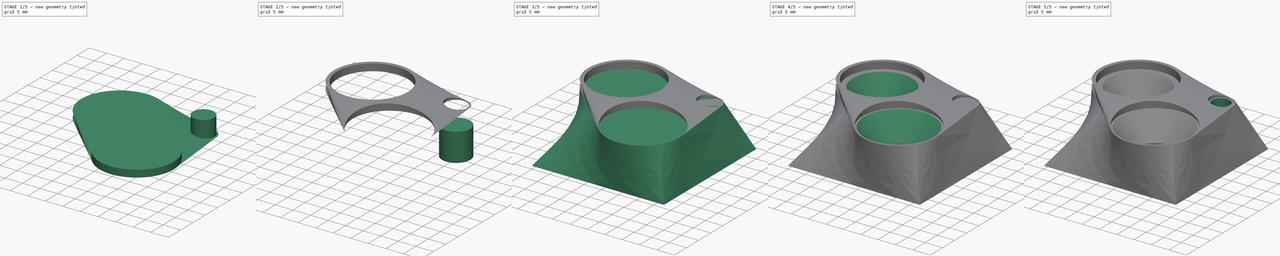
[diagram: build sequence overview — one tinted view per stage of 5, left to right]
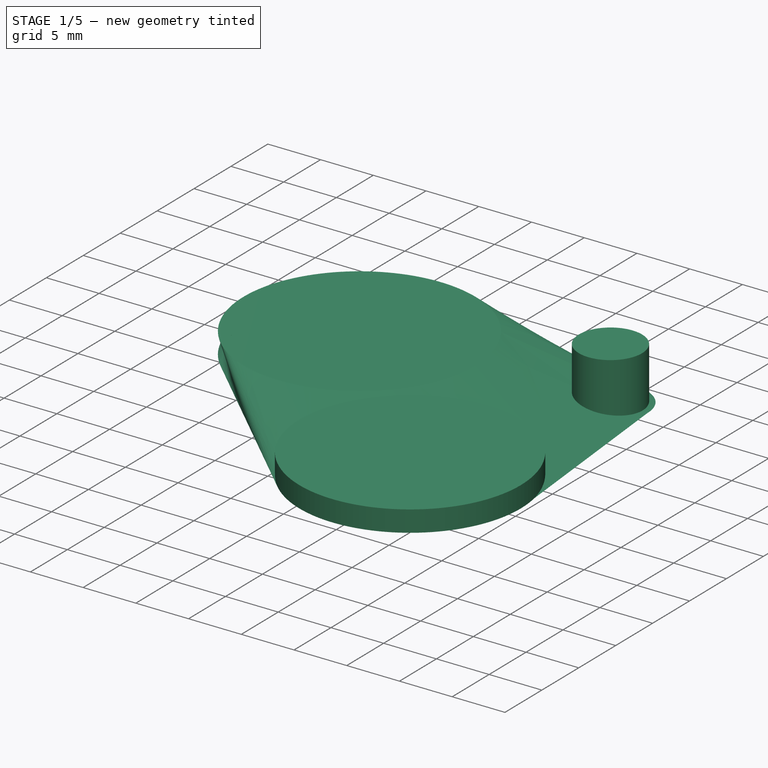
[diagram: stage 1 of 5 — iso view after this stage's code; geometry added in this stage tinted green]
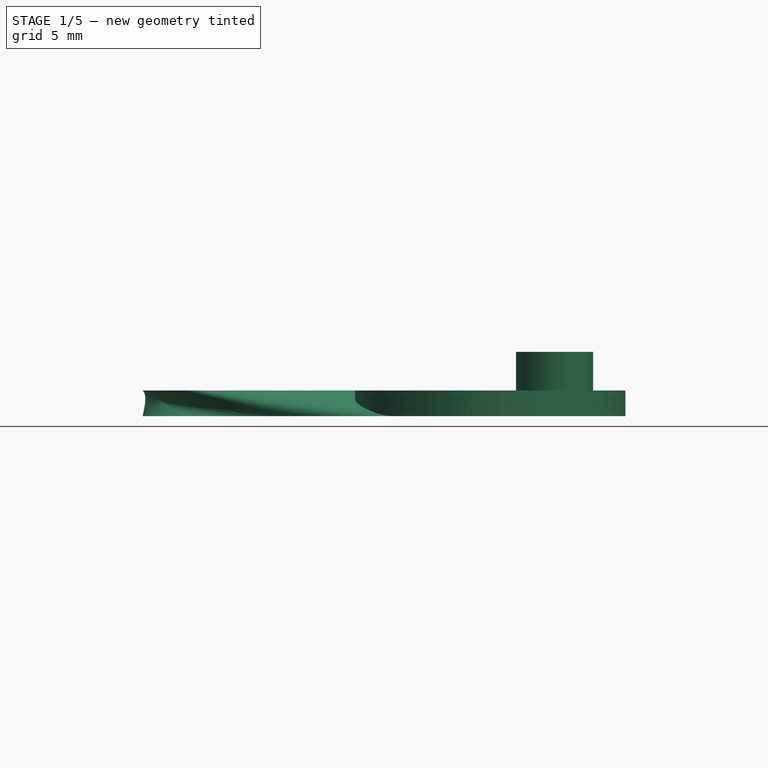
[diagram: stage 1 of 5 — front view after this stage's code; geometry added in this stage tinted green]
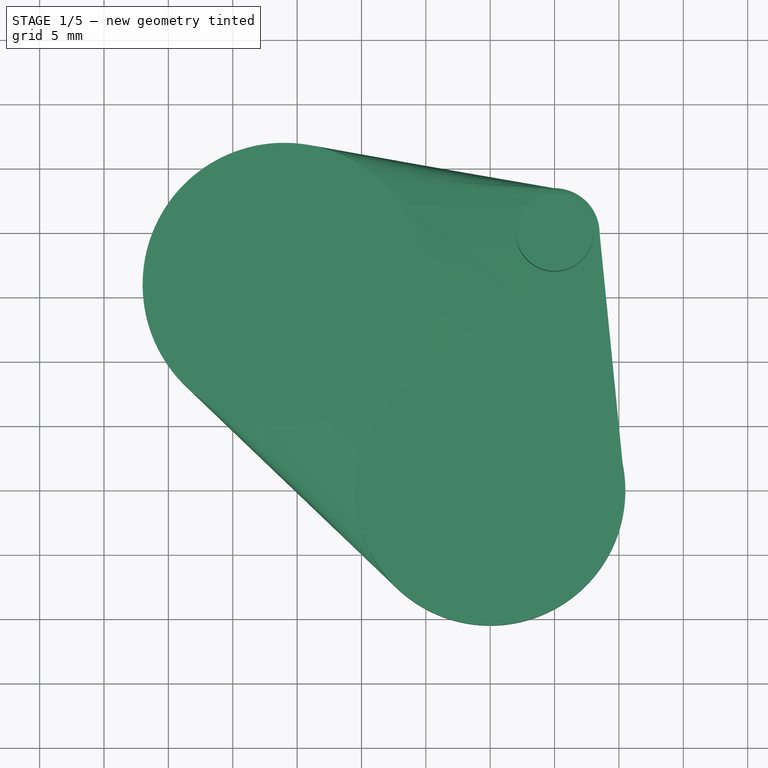
[diagram: stage 1 of 5 — top view after this stage's code; geometry added in this stage tinted green]
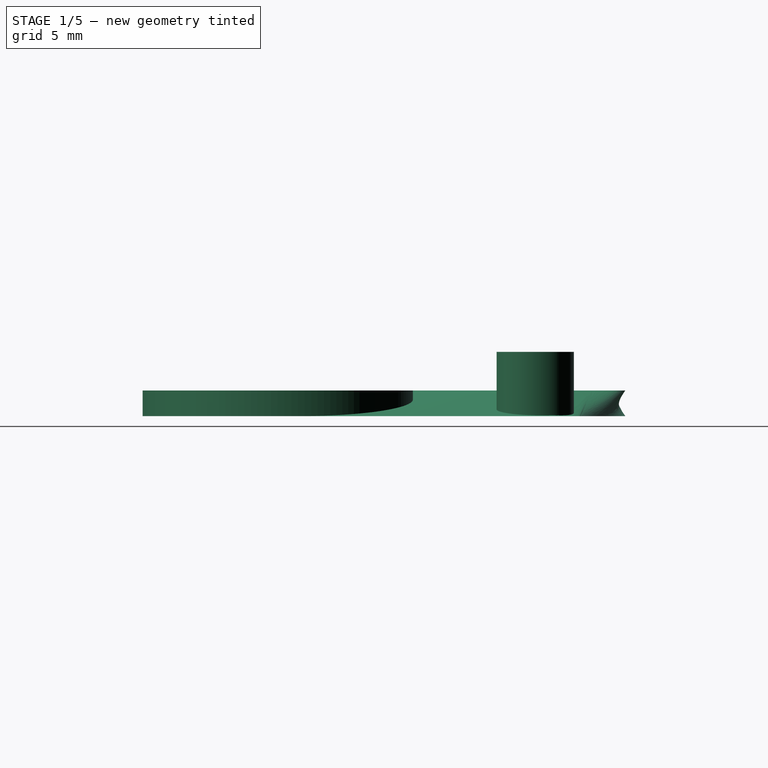
[diagram: stage 1 of 5 — right view after this stage's code; geometry added in this stage tinted green]
FCSTD DOCUMENT  (FreeCAD 0.15R4671 (Git))
Label: tapa_frontal
License: All rights reserved
LicenseURL: http://en.wikipedia.org/wiki/All_rights_reserved
objects: Sketcher::SketchObject×16, Part::Cut×8, PartDesign::Pad×5, Part::Loft×4, Part::Extrusion×1, Part::Fuse×1
note: 40 computed .brp shape members not serialized (recipe doc carries the construction recipe); baked Part::Feature solids carry a one-line shape summary decoded from their .brp

FEATURE [Part::Loft] Loft003
  Closed = false
  Ruled = false
  Sections = -> [Sketch003,Sketch008]
  Solid = true
FEATURE [Sketcher::SketchObject] Sketch014  label="base-superior-LED-cono-superior001"
  Placement = pos=(0,0,15) rot=(0,0,1;0rad)
  sketch-geometry (1):
    g0: Circle CenterX=9 CenterY=26 CenterZ=0 NormalX=0 NormalY=0 NormalZ=1 Radius=10
  constraints (3):
    c: DistanceY(g-1,g0) = 26
    c: DistanceX(g-2,g0) = 9
    c: Radius(g0) = 10
FEATURE [PartDesign::Pad] Pad
  Length = 2
  Length2 = 100
  Placement = pos=(0,0,15) rot=(0,0,1;0rad)
  Reversed = true
  Sketch = -> Sketch014
  Type = 0
FEATURE [Sketcher::SketchObject] Sketch015
  Placement = pos=(0,0,13) rot=(0,0,1;0rad)
  sketch-geometry (1):
    g0: Circle CenterX=25 CenterY=10 CenterZ=0 NormalX=0 NormalY=0 NormalZ=1 Radius=10.5
  constraints (3):
    c: DistanceX(g-1,g0) = 25
    c: DistanceY(g-1,g0) = 10
    c: Radius(g0) = 10.5
FEATURE [PartDesign::Pad] Pad001
  Length = 2
  Length2 = 100
  Placement = pos=(0,0,13) rot=(0,0,1;0rad)
  Sketch = -> Sketch015
  Type = 0
FEATURE [Sketcher::SketchObject] Sketch018
  Placement = pos=(0,0,13) rot=(0,0,1;0rad)
  sketch-geometry (1):
    g0: Circle CenterX=30 CenterY=30 CenterZ=0 NormalX=0 NormalY=0 NormalZ=1 Radius=3
  constraints (3):
    c: DistanceX(g-1,g0) = 30
    c: DistanceY(g-1,g0) = 30
    c: Radius(g0) = 3
FEATURE [PartDesign::Pad] Pad004
  Length = 5
  Length2 = 100
  Placement = pos=(0,0,13) rot=(0,0,1;0rad)
  Sketch = -> Sketch018
  Type = 0
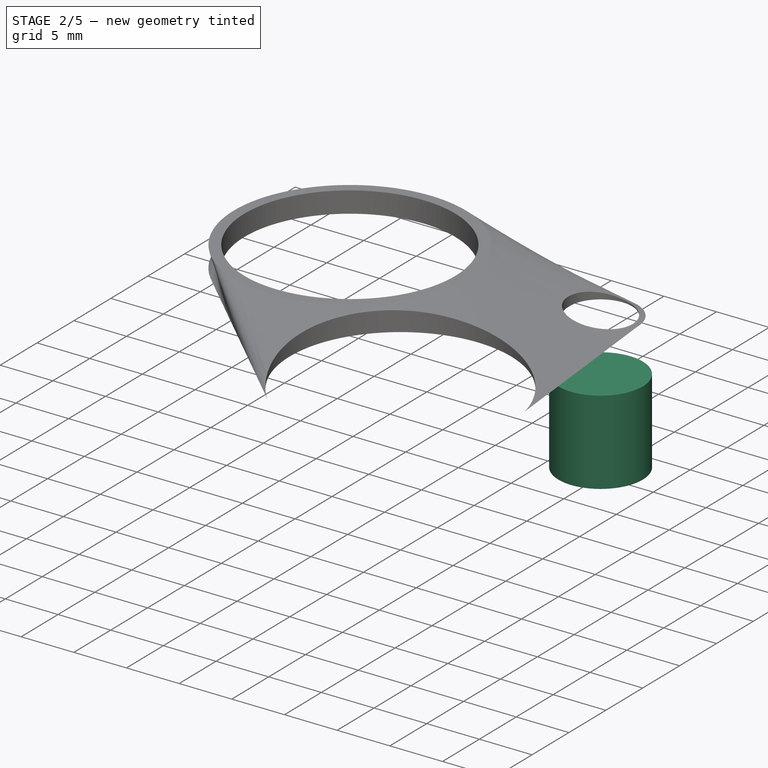
[diagram: stage 2 of 5 — iso view after this stage's code; geometry added in this stage tinted green]
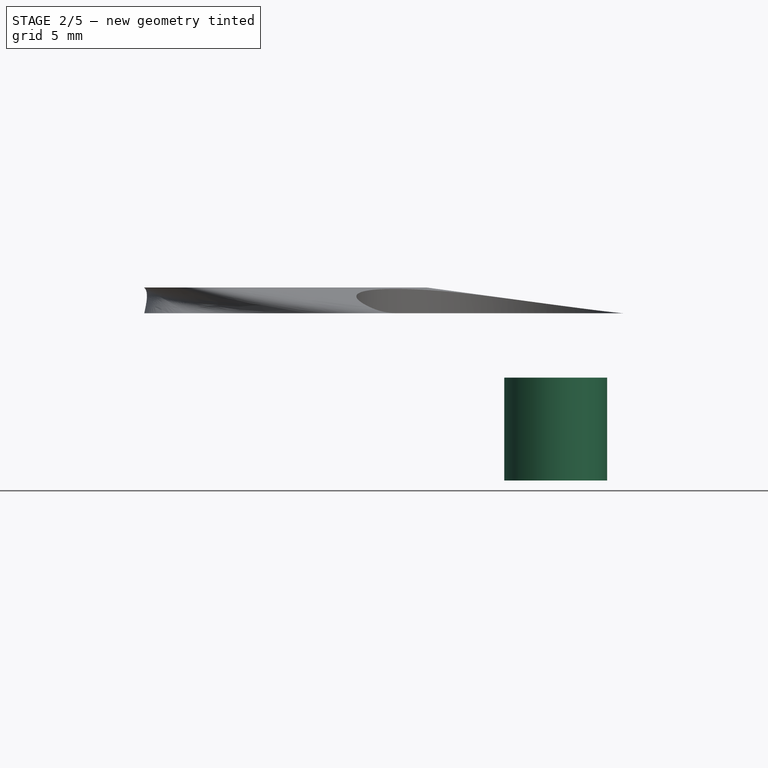
[diagram: stage 2 of 5 — front view after this stage's code; geometry added in this stage tinted green]
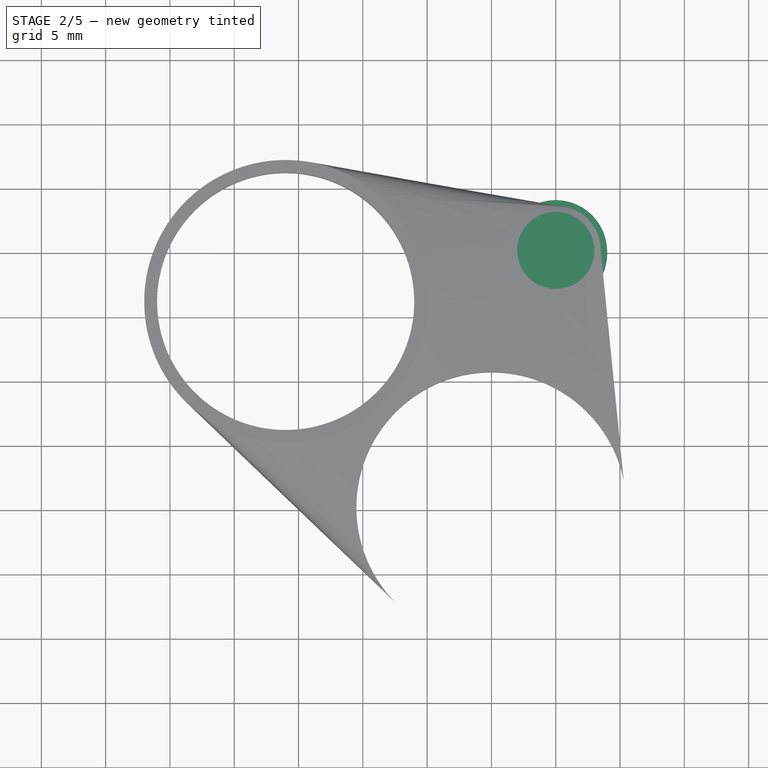
[diagram: stage 2 of 5 — top view after this stage's code; geometry added in this stage tinted green]
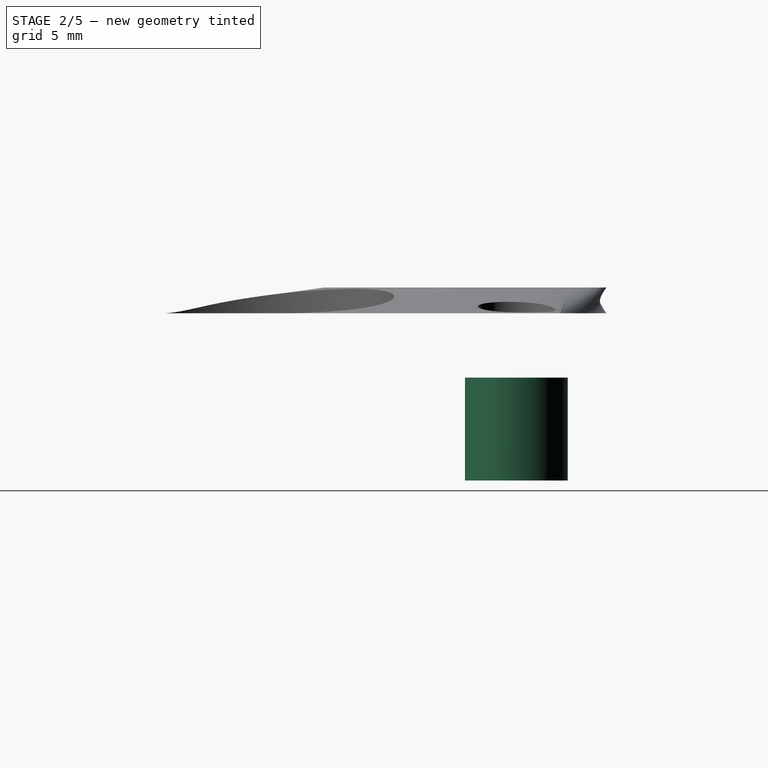
[diagram: stage 2 of 5 — right view after this stage's code; geometry added in this stage tinted green]
FEATURE [Part::Cut] Cut002  label="tapa"
  Base = -> Loft003
  Tool = -> Pad
FEATURE [Part::Cut] Cut004  label="tapa001"
  Base = -> Cut002
  Tool = -> Pad001
FEATURE [Sketcher::SketchObject] Sketch017  label="base-superior-SENSOR"
  sketch-geometry (1):
    g0: Circle CenterX=30 CenterY=30 CenterZ=0 NormalX=0 NormalY=0 NormalZ=1 Radius=2.5
  constraints (3):
    c: DistanceY(g-1,g0) = 30
    c: DistanceX(g-1,g0) = 30
    c: Radius(g0) = 2.5
FEATURE [PartDesign::Pad] Pad002
  Length = 8
  Length2 = 100
  Sketch = -> Sketch001
  Type = 0
FEATURE [Part::Cut] Cut007
  Base = -> Cut004
  Tool = -> Pad004
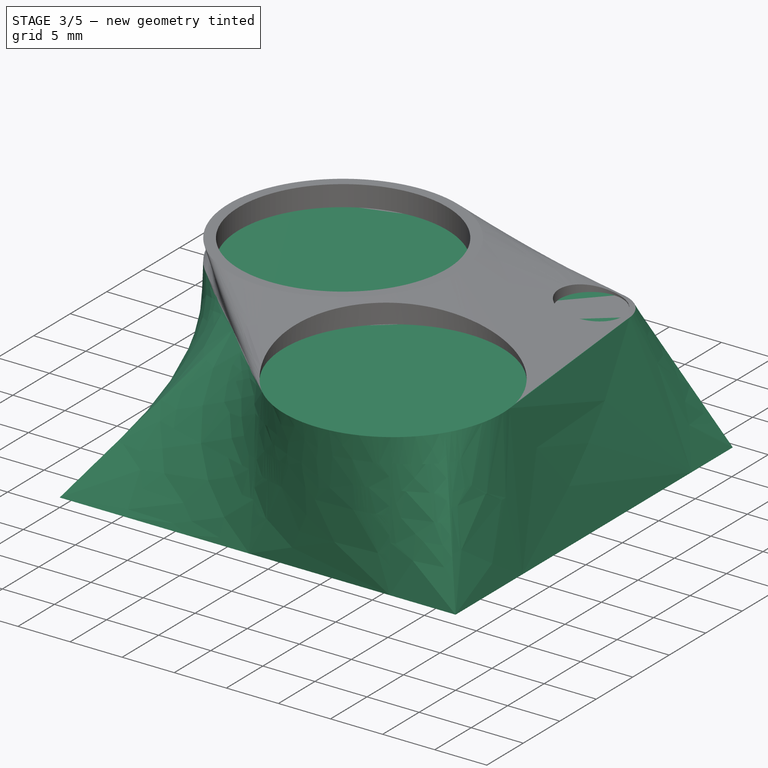
[diagram: stage 3 of 5 — iso view after this stage's code; geometry added in this stage tinted green]
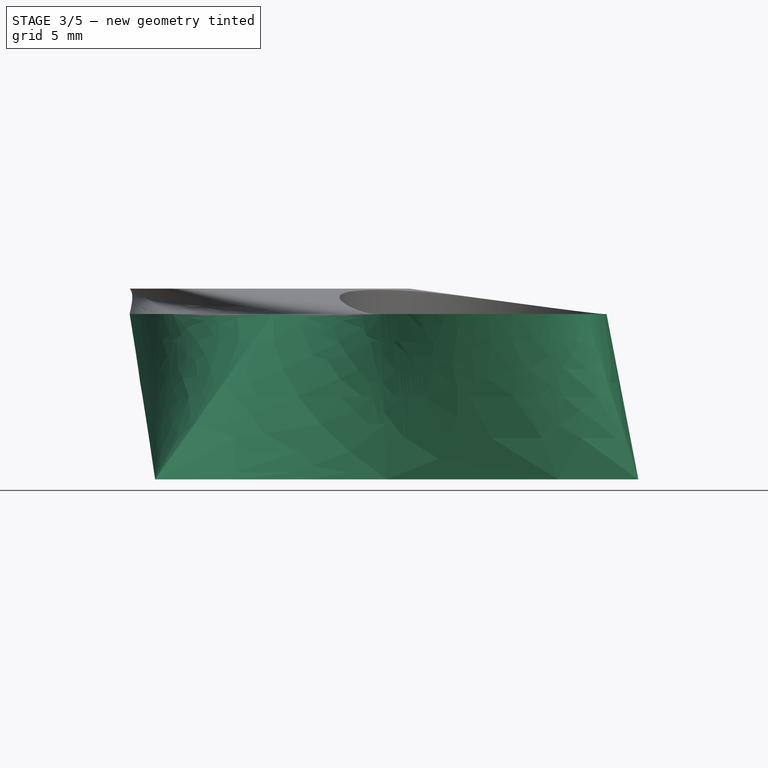
[diagram: stage 3 of 5 — front view after this stage's code; geometry added in this stage tinted green]
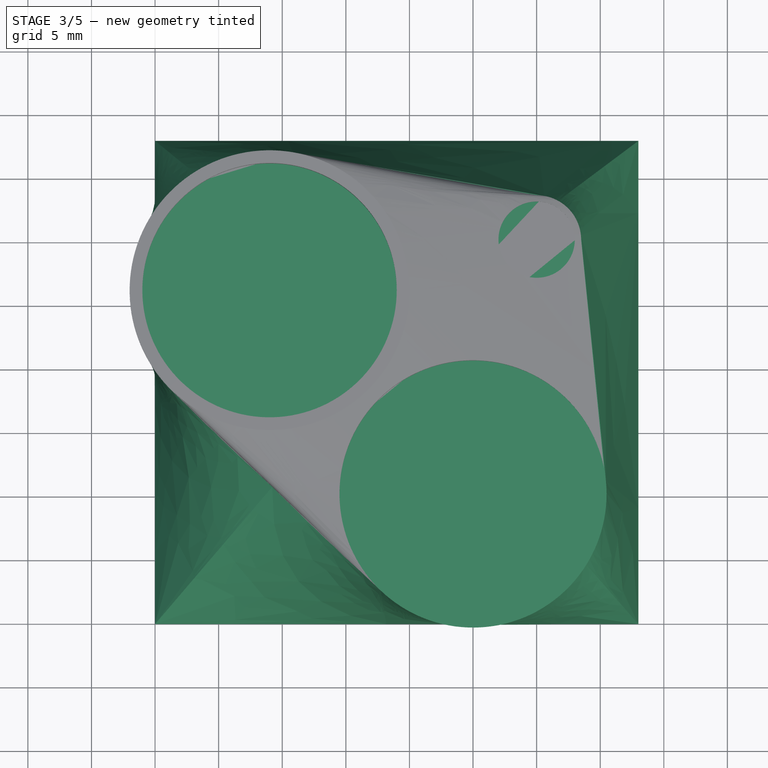
[diagram: stage 3 of 5 — top view after this stage's code; geometry added in this stage tinted green]
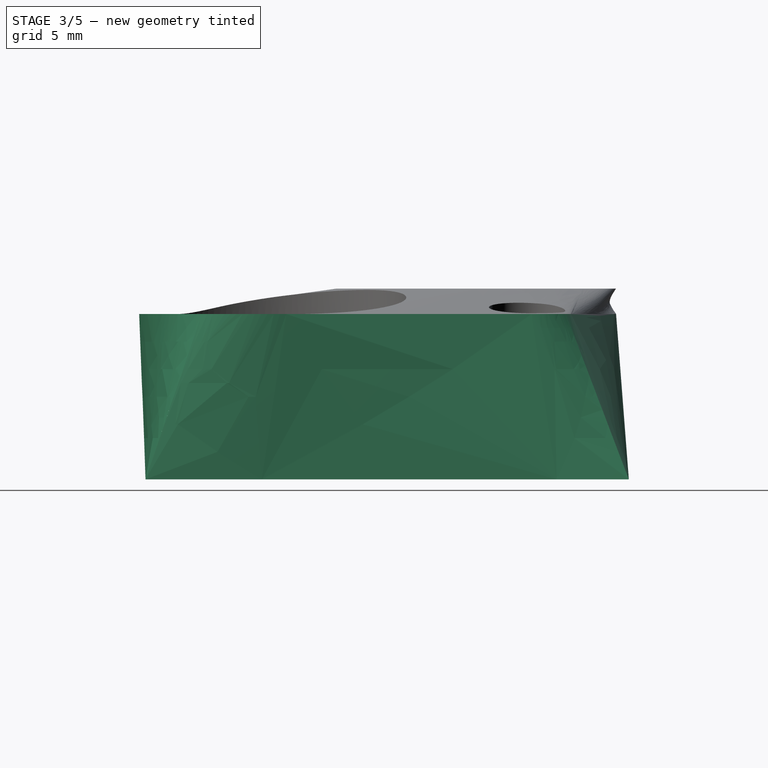
[diagram: stage 3 of 5 — right view after this stage's code; geometry added in this stage tinted green]
FEATURE [Sketcher::SketchObject] Sketch  label="base-inferior"
  sketch-geometry (5):
    g0: LineSegment StartX=0 StartY=38 StartZ=0 EndX=38 EndY=38 EndZ=0
    g1: LineSegment StartX=38 StartY=38 StartZ=0 EndX=38 EndY=0 EndZ=0
    g2: LineSegment StartX=0 StartY=0 StartZ=0 EndX=0 EndY=38 EndZ=0
    g3: LineSegment StartX=0 StartY=0 StartZ=0 EndX=31.6799 EndY=0 EndZ=0
    g4: LineSegment StartX=31.6799 StartY=0 StartZ=0 EndX=38 EndY=0 EndZ=0
  constraints (14):
    c: Coincident(g0,g1)
    c: Coincident(g2,g0)
    c: Horizontal(g0)
    c: Vertical(g1)
    c: DistanceX(g0) = 38
    c: Coincident(g1,g4)
    c: Horizontal(g3)
    c: Horizontal(g4)
    c: Vertical(g2)
    c: DistanceY(g1) = -38
    c: DistanceX(g4) = 6.32011
    c: Coincident(g3,g4)
    c: Coincident(g2,g-1)
    c: Coincident(g2,g3)
FEATURE [Sketcher::SketchObject] Sketch001  label="base-inferior-SENSOR"
  sketch-geometry (1):
    g0: Circle CenterX=30 CenterY=30 CenterZ=0 NormalX=0 NormalY=0 NormalZ=1 Radius=4
  constraints (3):
    c: DistanceX(g-2,g0) = 30
    c: DistanceY(g-1,g0) = 30
    c: Radius(g0) = 4
FEATURE [Sketcher::SketchObject] Sketch002  label="base-superior"
  Placement = pos=(0,0,13) rot=(0,0,1;0rad)
  sketch-geometry (6):
    g0: ArcOfCircle CenterX=9 CenterY=26 CenterZ=0 NormalX=0 NormalY=0 NormalZ=1 Radius=11 StartAngle=1.40055 EndAngle=3.94909
    g1: ArcOfCircle CenterX=30 CenterY=30 CenterZ=0 NormalX=0 NormalY=0 NormalZ=1 Radius=3.5 StartAngle=0.10146 EndAngle=1.40055
    g2: ArcOfCircle CenterX=25 CenterY=10 CenterZ=0 NormalX=0 NormalY=0 NormalZ=1 Radius=10.5 StartAngle=3.94909 EndAngle=6.38464
    g3: LineSegment StartX=10.8636 StartY=36.841 StartZ=0 EndX=30.593 EndY=33.4494 EndZ=0
    g4: LineSegment StartX=33.482 StartY=30.3545 StartZ=0 EndX=35.446 EndY=11.0635 EndZ=0
    g5: LineSegment StartX=1.3956 StartY=18.0518 StartZ=0 EndX=17.7413 EndY=2.41313 EndZ=0
  constraints (15):
    c: Radius(g0) = 11
    c: Radius(g1) = 3.5
    c: Radius(g2) = 10.5
    c: DistanceX(g-2,g2) = 25
    c: DistanceY(g-1,g2) = 10
    c: DistanceY(g-1,g1) = 30
    c: DistanceX(g-2,g1) = 30
    c: DistanceX(g-2,g0) = 9
    c: DistanceY(g-1,g0) = 26
    c: Coincident(g0,g3)
    c: Coincident(g0,g5)
    c: Coincident(g2,g5)
    c: Coincident(g2,g4)
    c: Coincident(g1,g4)
    c: Coincident(g1,g3)
FEATURE [Sketcher::SketchObject] Sketch003  label="base-superior-borde"
  Placement = pos=(0,0,13) rot=(0,0,1;0rad)
  sketch-geometry (6):
    g0: ArcOfCircle CenterX=9 CenterY=26 CenterZ=0 NormalX=0 NormalY=0 NormalZ=1 Radius=11 StartAngle=1.47155 EndAngle=3.94909
    g1: ArcOfCircle CenterX=30 CenterY=30 CenterZ=0 NormalX=0 NormalY=0 NormalZ=1 Radius=3.5 StartAngle=0 EndAngle=1.5708
    g2: ArcOfCircle CenterX=25 CenterY=10 CenterZ=0 NormalX=0 NormalY=0 NormalZ=1 Radius=10.5 StartAngle=3.94909 EndAngle=6.28319
    g3: LineSegment StartX=10.0899 StartY=36.9459 StartZ=0 EndX=30 EndY=33.5 EndZ=0
    g4: LineSegment StartX=33.5 StartY=30 StartZ=0 EndX=35.5 EndY=10 EndZ=0
    g5: LineSegment StartX=1.3956 StartY=18.0518 StartZ=0 EndX=17.7413 EndY=2.41313 EndZ=0
  constraints (21):
    c: Radius(g0) = 11
    c: Radius(g1) = 3.5
    c: Radius(g2) = 10.5
    c: DistanceX(g-2,g2) = 25
    c: DistanceY(g-1,g2) = 10
    c: DistanceY(g-1,g1) = 30
    c: DistanceX(g-2,g1) = 30
    c: DistanceX(g-2,g0) = 9
    c: DistanceY(g-1,g0) = 26
    c: Coincident(g0,g3)
    c: Coincident(g0,g5)
    c: Coincident(g2,g5)
    c: Coincident(g2,g4)
    c: Coincident(g1,g4)
    c: Coincident(g1,g3)
    c: DistanceX(g-2,g0) = 10.0899
    c: DistanceX(g-2,g1) = 30
    c: DistanceY(g-1,g1) = 30
    c: DistanceY(g-1,g2) = 10
    c: DistanceY(g-1,g2) = 2.41313
    c: DistanceX(g-2,g0) = 1.3956
FEATURE [Sketcher::SketchObject] Sketch005  label="base-inferior001"
  sketch-geometry (4):
    g0: LineSegment StartX=0 StartY=38 StartZ=0 EndX=38 EndY=38 EndZ=0
    g1: LineSegment StartX=38 StartY=38 StartZ=0 EndX=38 EndY=0 EndZ=0
    g2: LineSegment StartX=38 StartY=0 StartZ=0 EndX=0 EndY=0 EndZ=0
    g3: LineSegment StartX=0 StartY=0 StartZ=0 EndX=0 EndY=38 EndZ=0
  constraints (11):
    c: Coincident(g0,g1)
    c: Coincident(g1,g2)
    c: Coincident(g2,g3)
    c: Coincident(g3,g0)
    c: Horizontal(g0)
    c: Horizontal(g2)
    c: Vertical(g1)
    c: Vertical(g3)
    c: Coincident(g2,g-1)
    c: DistanceY(g3) = 38
    c: DistanceX(g0) = 38
FEATURE [Sketcher::SketchObject] Sketch006  label="base-superior001"
  Placement = pos=(0,0,13) rot=(0,0,1;0rad)
  sketch-geometry (6):
    g0: ArcOfCircle CenterX=9 CenterY=26 CenterZ=0 NormalX=0 NormalY=0 NormalZ=1 Radius=11 StartAngle=1.40055 EndAngle=3.94909
    g1: ArcOfCircle CenterX=30 CenterY=30 CenterZ=0 NormalX=0 NormalY=0 NormalZ=1 Radius=3.5 StartAngle=0.10146 EndAngle=1.40055
    g2: ArcOfCircle CenterX=25 CenterY=10 CenterZ=0 NormalX=0 NormalY=0 NormalZ=1 Radius=10.5 StartAngle=3.94909 EndAngle=6.38464
    g3: LineSegment StartX=10.8636 StartY=36.841 StartZ=0 EndX=30.593 EndY=33.4494 EndZ=0
    g4: LineSegment StartX=33.482 StartY=30.3545 StartZ=0 EndX=35.446 EndY=11.0635 EndZ=0
    g5: LineSegment StartX=1.3956 StartY=18.0518 StartZ=0 EndX=17.7413 EndY=2.41313 EndZ=0
  constraints (15):
    c: Radius(g0) = 11
    c: Radius(g1) = 3.5
    c: Radius(g2) = 10.5
    c: DistanceX(g-2,g2) = 25
    c: DistanceY(g-1,g2) = 10
    c: DistanceY(g-1,g1) = 30
    c: DistanceX(g-2,g1) = 30
    c: DistanceX(g-2,g0) = 9
    c: DistanceY(g-1,g0) = 26
    c: Coincident(g0,g3)
    c: Coincident(g0,g5)
    c: Coincident(g2,g5)
    c: Coincident(g2,g4)
    c: Coincident(g1,g4)
    c: Coincident(g1,g3)
FEATURE [Sketcher::SketchObject] Sketch007  label="recortes-entrada-LED"
  sketch-geometry (4):
    g0: ArcOfCircle CenterX=9 CenterY=26 CenterZ=0 NormalX=0 NormalY=0 NormalZ=1 Radius=11 StartAngle=4.02261 EndAngle=8.54376
    g1: ArcOfCircle CenterX=25 CenterY=10 CenterZ=0 NormalX=0 NormalY=0 NormalZ=1 Radius=11 StartAngle=5.46885 EndAngle=10.2391
    g2: LineSegment StartX=2 StartY=34.4853 StartZ=0 EndX=2 EndY=17.5147 EndZ=0
    g3: LineSegment StartX=17.4502 StartY=2 StartZ=0 EndX=32.5498 EndY=2 EndZ=0
  constraints (14):
    c: DistanceX(g-1,g0) = 9
    c: DistanceY(g-1,g0) = 26
    c: Radius(g0) = 11
    c: DistanceY(g-1,g1) = 10
    c: DistanceX(g-1,g1) = 25
    c: Radius(g1) = 11
    c: Vertical(g2)
    c: Coincident(g0,g2)
    c: Coincident(g0,g2)
    c: DistanceX(g-1,g0) = 2
    c: Horizontal(g3)
    c: Coincident(g1,g3)
    c: Coincident(g1,g3)
    c: DistanceY(g-1,g1) = 2
FEATURE [Sketcher::SketchObject] Sketch008  label="base-superior-LED-2"
  Placement = pos=(0,0,15) rot=(0,0,1;0rad)
  sketch-geometry (1):
    g0: Circle CenterX=9 CenterY=26 CenterZ=0 NormalX=0 NormalY=0 NormalZ=1 Radius=11
  constraints (3):
    c: DistanceY(g-1,g0) = 26
    c: DistanceX(g-2,g0) = 9
    c: Radius(g0) = 11
FEATURE [Part::Extrusion] Extrude001  label="recortes-LED-base"
  Base = -> Sketch007
  Dir = (0,0,7)
  Solid = true
FEATURE [Sketcher::SketchObject] Sketch010  label="base-superior-LED-cono-superior"
  Placement = pos=(0,0,15) rot=(0,0,1;0rad)
  sketch-geometry (1):
    g0: Circle CenterX=9 CenterY=26 CenterZ=0 NormalX=0 NormalY=0 NormalZ=1 Radius=10
  constraints (3):
    c: DistanceY(g-1,g0) = 26
    c: DistanceX(g-2,g0) = 9
    c: Radius(g0) = 10
FEATURE [Part::Loft] Loft
  Closed = false
  Ruled = false
  Sections = -> [Sketch,Sketch002]
  Solid = true
FEATURE [Part::Cut] Cut
  Base = -> Loft
  Tool = -> Extrude001
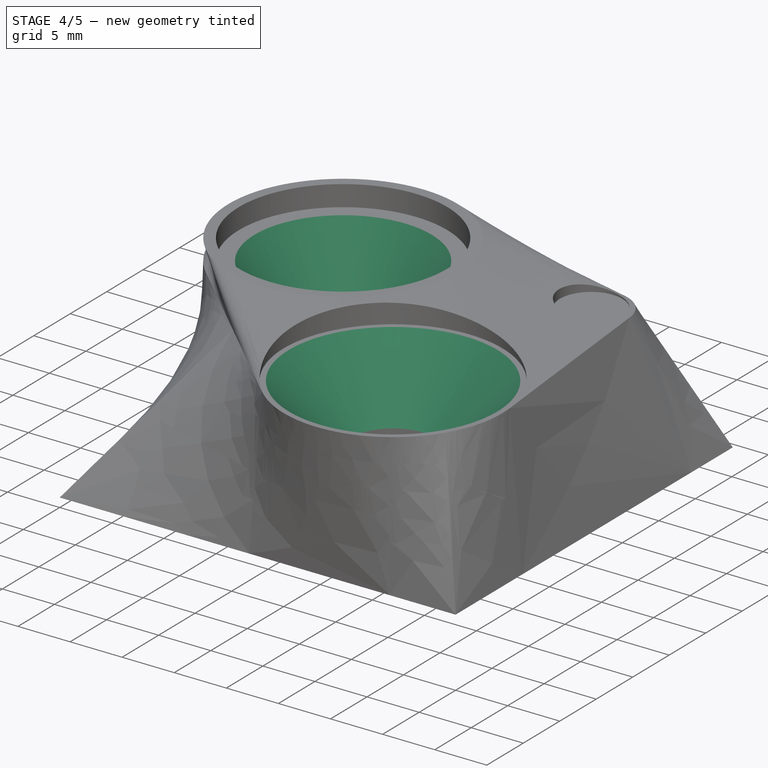
[diagram: stage 4 of 5 — iso view after this stage's code; geometry added in this stage tinted green]
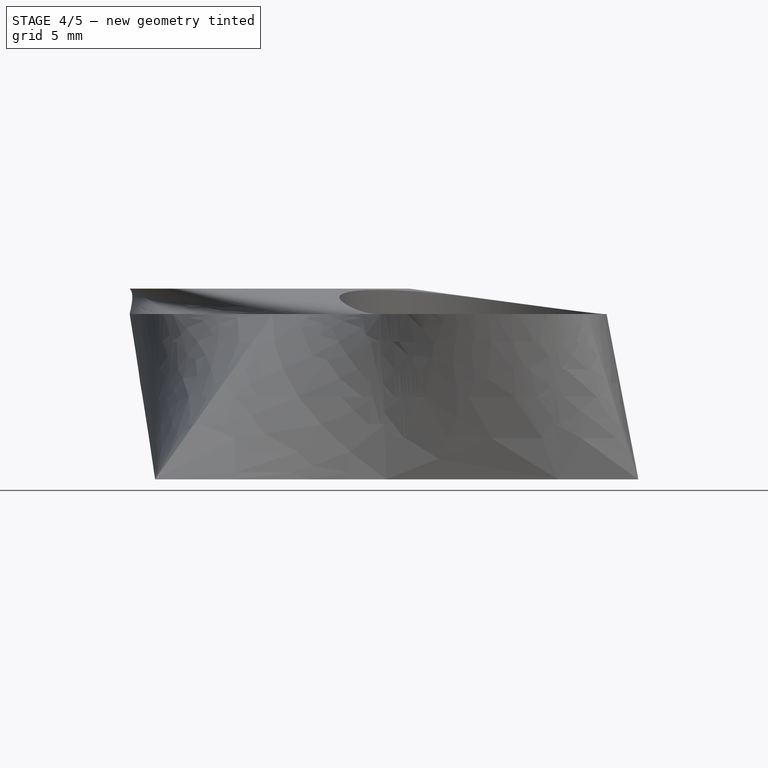
[diagram: stage 4 of 5 — front view after this stage's code; geometry added in this stage tinted green]
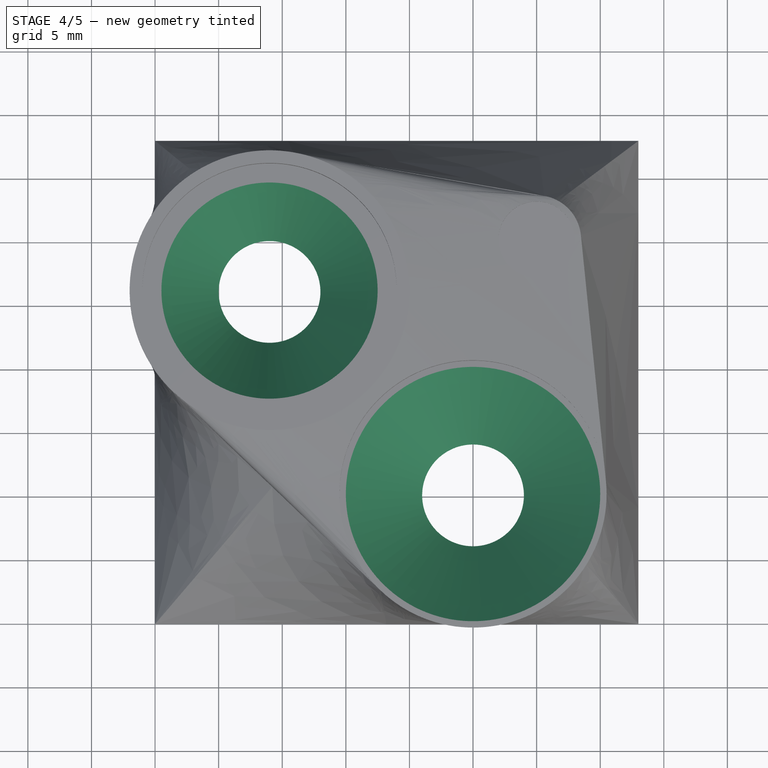
[diagram: stage 4 of 5 — top view after this stage's code; geometry added in this stage tinted green]
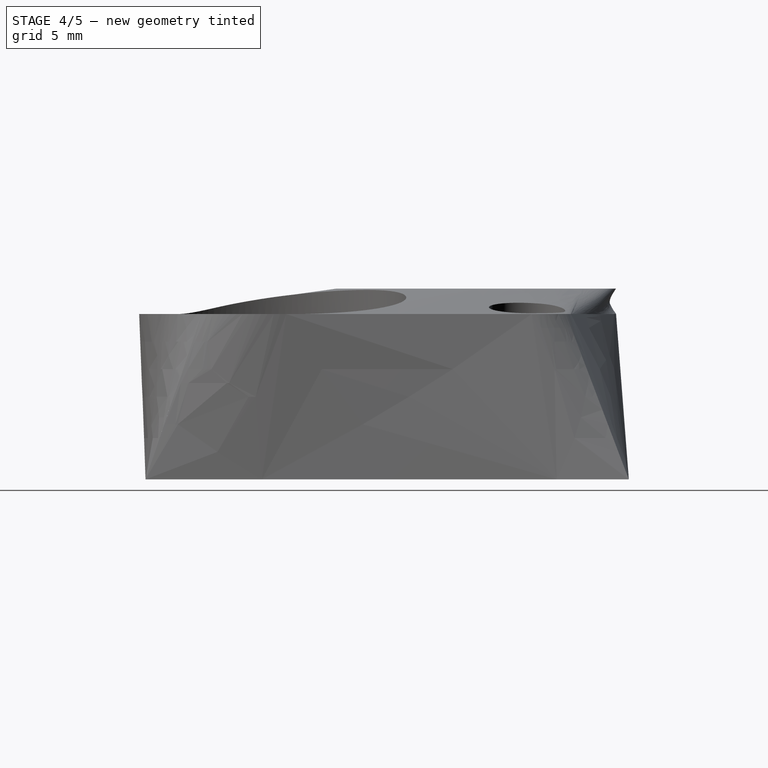
[diagram: stage 4 of 5 — right view after this stage's code; geometry added in this stage tinted green]
FEATURE [Sketcher::SketchObject] Sketch011  label="base-superior-LED-cono-inferior"
  Placement = pos=(0,0,7) rot=(0,0,1;0rad)
  Support = -> Extrude001 [Face8]
  sketch-geometry (1):
    g0: Circle CenterX=9 CenterY=26 CenterZ=0 NormalX=0 NormalY=0 NormalZ=1 Radius=4
  constraints (3):
    c: DistanceX(g-1,g0) = 9
    c: DistanceY(g-1,g0) = 26
    c: Radius(g0) = 4
FEATURE [Part::Loft] Loft001  label="cono-LED-2"
  Closed = false
  Ruled = false
  Sections = -> [Sketch010,Sketch011]
  Solid = true
FEATURE [Sketcher::SketchObject] Sketch012  label="cono-LED-1-inferior"
  Placement = pos=(0,0,7) rot=(0,0,1;0rad)
  Support = -> Extrude001 [Face4]
  sketch-geometry (1):
    g0: Circle CenterX=25 CenterY=10 CenterZ=0 NormalX=0 NormalY=0 NormalZ=1 Radius=4
  constraints (3):
    c: DistanceY(g-1,g0) = 10
    c: DistanceX(g-1,g0) = 25
    c: Radius(g0) = 4
FEATURE [Sketcher::SketchObject] Sketch013  label="cono-LED-1-superior"
  Placement = pos=(0,0,13) rot=(0,0,1;0rad)
  sketch-geometry (1):
    g0: Circle CenterX=25 CenterY=10 CenterZ=0 NormalX=0 NormalY=0 NormalZ=1 Radius=10
  constraints (3):
    c: DistanceY(g-1,g0) = 10
    c: DistanceX(g-1,g0) = 25
    c: Radius(g0) = 10
FEATURE [Part::Loft] Loft002  label="cono-LED-1"
  Closed = false
  Ruled = false
  Sections = -> [Sketch012,Sketch013]
  Solid = true
FEATURE [Part::Cut] Cut001
  Base = -> Cut
  Tool = -> Loft002
FEATURE [Part::Cut] Cut003  label="base"
  Base = -> Cut001
  Tool = -> Loft001
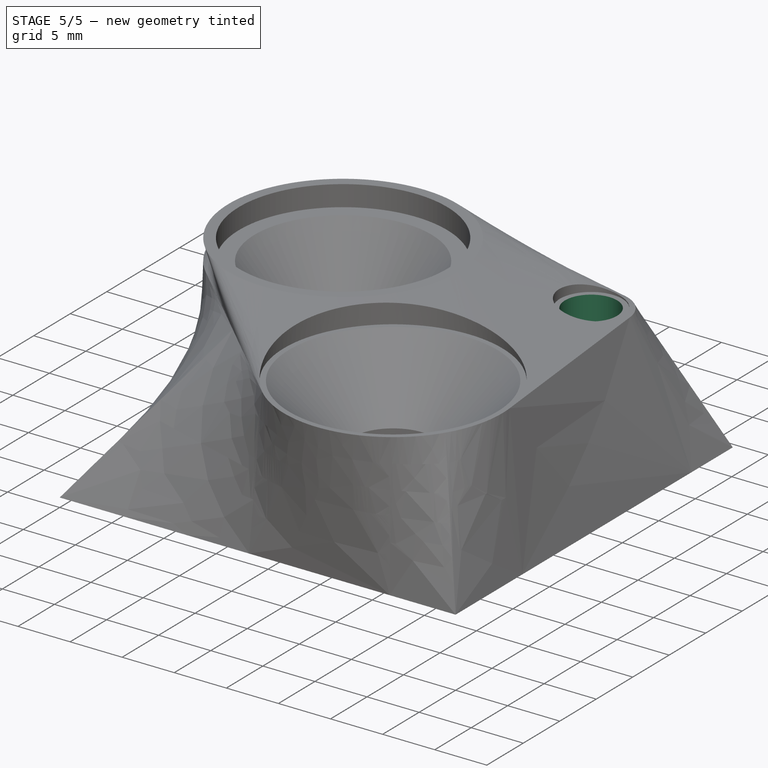
[diagram: stage 5 of 5 — iso view after this stage's code; geometry added in this stage tinted green]
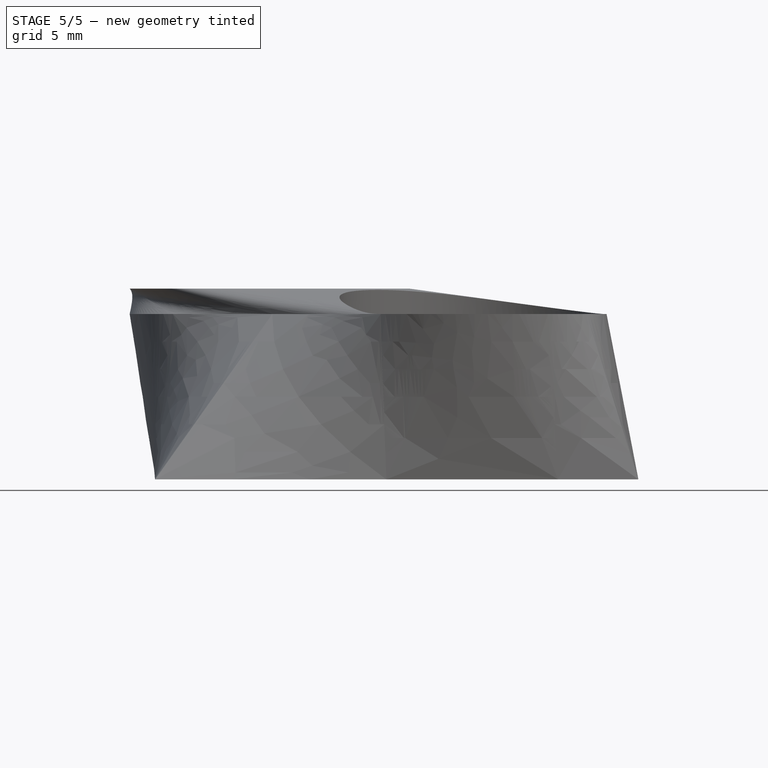
[diagram: stage 5 of 5 — front view after this stage's code; geometry added in this stage tinted green]
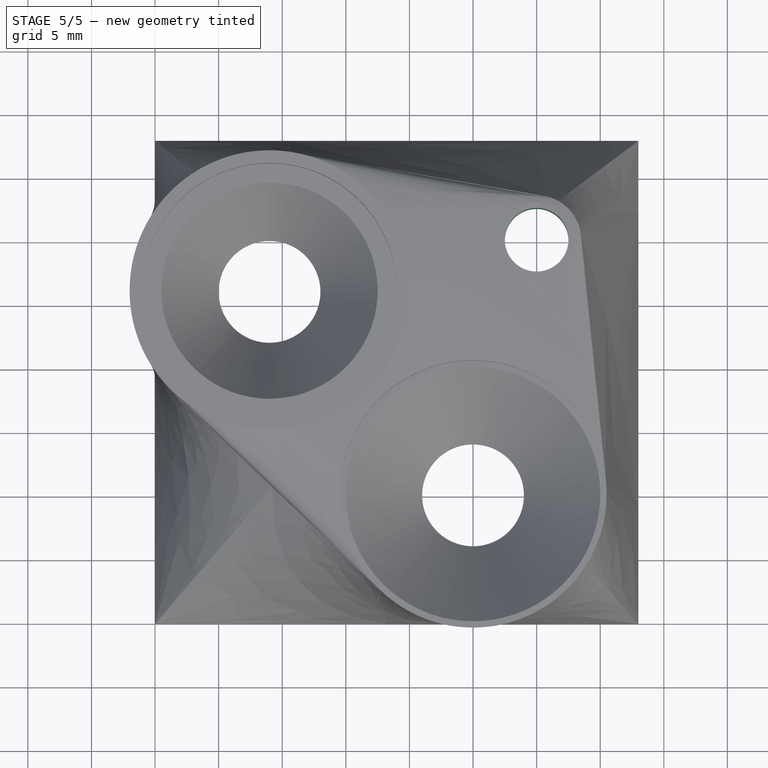
[diagram: stage 5 of 5 — top view after this stage's code; geometry added in this stage tinted green]
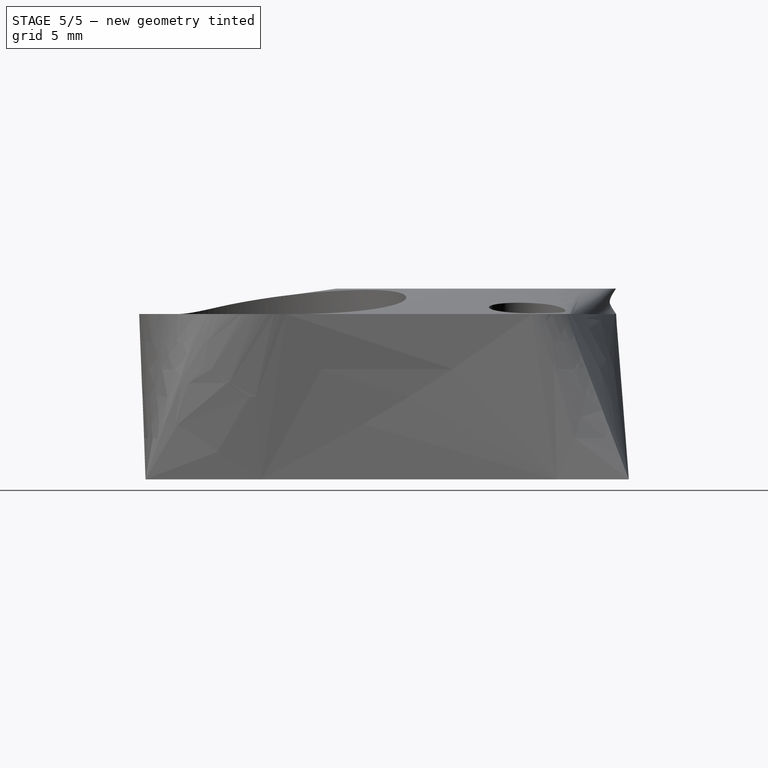
[diagram: stage 5 of 5 — right view after this stage's code; geometry added in this stage tinted green]
FEATURE [PartDesign::Pad] Pad003
  Length = 20
  Length2 = 100
  Sketch = -> Sketch017
  Type = 0
FEATURE [Part::Cut] Cut005
  Base = -> Cut003
  Tool = -> Pad002
FEATURE [Part::Cut] Cut006
  Base = -> Cut005
  Tool = -> Pad003
FEATURE [Part::Fuse] Fusion
  Base = -> Cut006
  Tool = -> Cut007
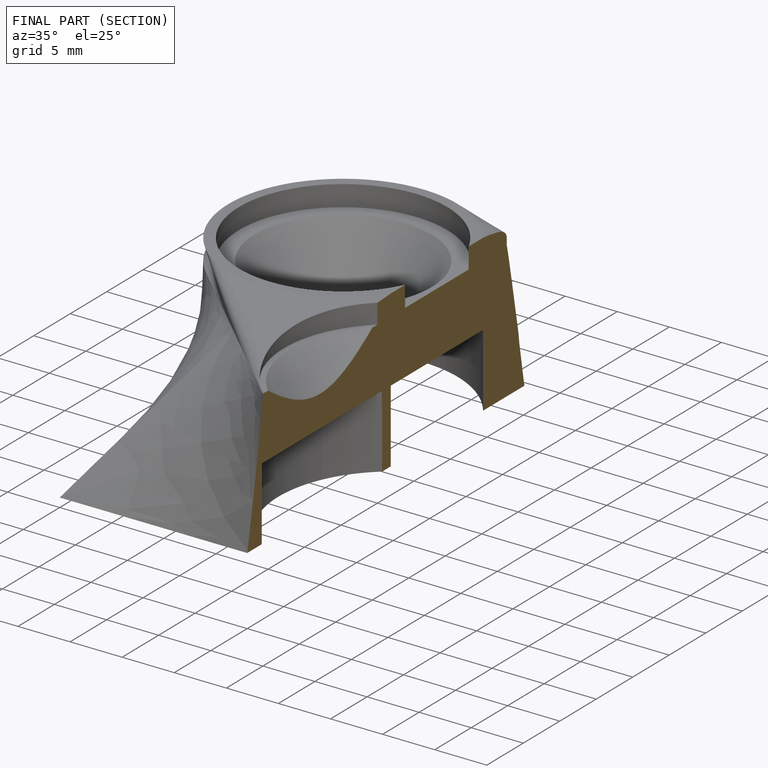
[diagram: finished part — half-section view (interior)]
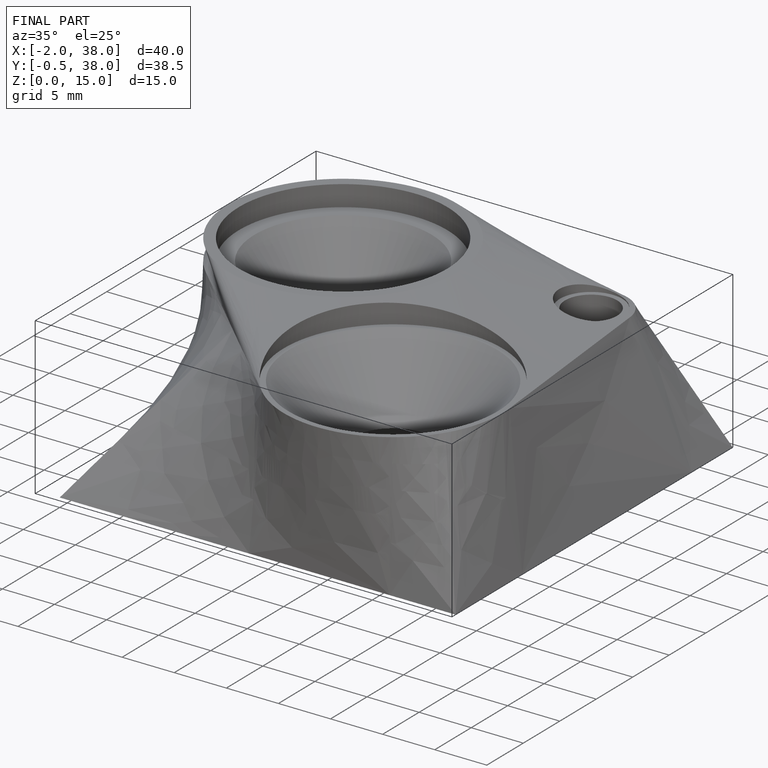
[diagram: finished part — iso view with bounding-box wireframe]
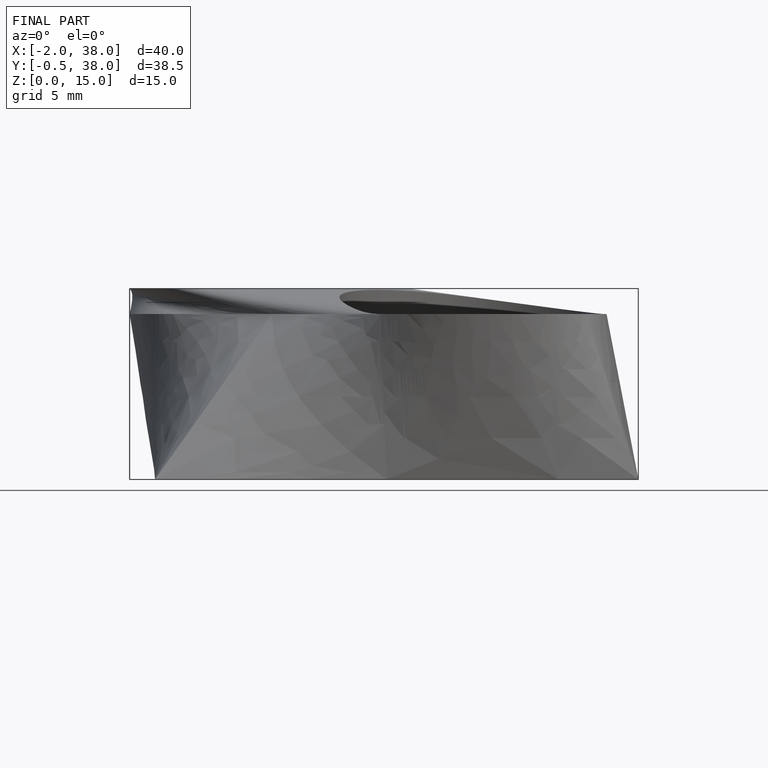
[diagram: finished part — front view with bounding-box wireframe]
